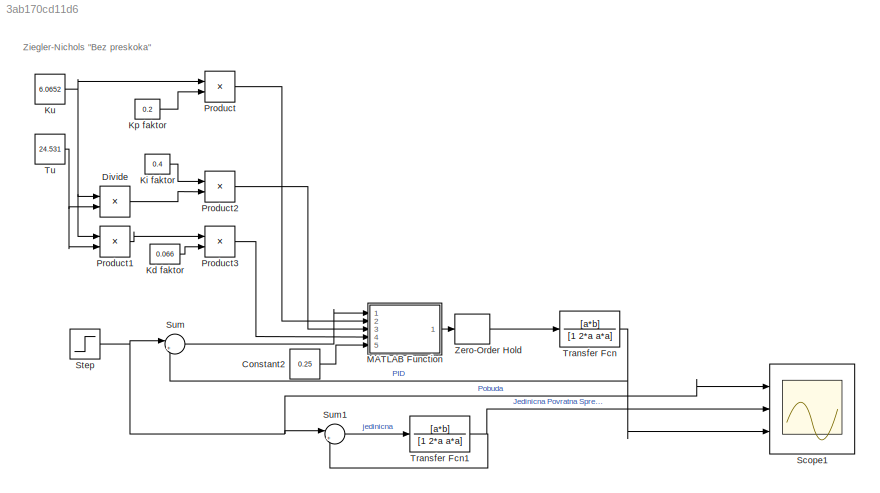
MODEL slx_3ab170cd11d6
KIND model
CONFIG AbsTol = auto
CONFIG EnableMultiTasking = off
CONFIG FixedStep = auto
CONFIG MaxStep = auto
CONFIG MinStep = auto
CONFIG RelTol = 1e-3
CONFIG SampleTimeConstraint = Unconstrained
CONFIG Solver = VariableStepAuto
CONFIG SolverName = VariableStepAuto
CONFIG StartTime = 0.0
CONFIG StopTime = 500
BLOCK [Constant] Constant2
  Value = 0.25
BLOCK [Product] Divide
  Inputs = */
  Ports = [2, 1]
BLOCK [Constant] Kd faktor
  Value = 0.066
BLOCK [Constant] Ki faktor
  Value = 0.4
BLOCK [Constant] Kp faktor
  Value = 0.2
BLOCK [Constant] Ku
  Value = 6.0652
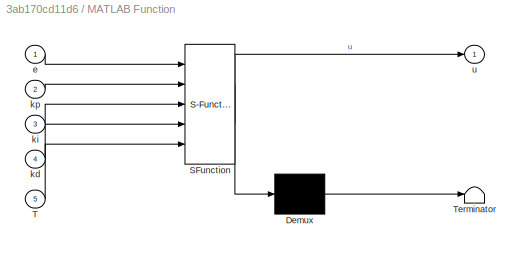
BLOCK [SubSystem] MATLAB Function
  ErrorFcn = Stateflow.Translate.translate
  PermitHierarchicalResolution = ExplicitOnly
  Ports = [5, 1]
  RequestExecContextInheritance = off
  SFBlockType = MATLAB Function
  TreatAsAtomicUnit = on
BLOCK [Demux] MATLAB Function/ Demux 
  Outputs = 1
  Ports = [1, 1]
BLOCK [S-Function] MATLAB Function/ SFunction 
  EnableBusSupport = on
  FunctionName = sf_sfun
  PortCounts = [5 2]
  Ports = [5, 2]
  SFcnIsStateOwnerBlock = off
  SFunctionDeploymentMode = off
  Tag = Stateflow S-Function DiskretniPID_za2018 2
BLOCK [Terminator] MATLAB Function/ Terminator 
BLOCK [Inport] MATLAB Function/T
  Port = 5
BLOCK [Inport] MATLAB Function/e
BLOCK [Inport] MATLAB Function/kd
  Port = 4
BLOCK [Inport] MATLAB Function/ki
  Port = 3
BLOCK [Inport] MATLAB Function/kp
  Port = 2
BLOCK [Outport] MATLAB Function/u
  VectorParamsAs1DForOutWhenUnconnected = off
BLOCK [Product] Product
  Ports = [2, 1]
BLOCK [Product] Product1
  Ports = [2, 1]
BLOCK [Product] Product2
  Ports = [2, 1]
BLOCK [Product] Product3
  Ports = [2, 1]
BLOCK [Scope] Scope1
  Floating = off
  NumInputPorts = 3
  Ports = [3]
  ScopeSpecificationString = Simulink.scopes.TimeScopeBlockCfg('CurrentConfiguration', extmgr.ConfigurationSet(extmgr.Configuration('Core','General UI',true),extmgr.Configuration('Core','Source UI',true),extmgr.Configuration('Sources','WiredSimulink',true,'DataLoggingVariableName','ScopeData1'),extmgr.Configuration('Visuals','Time Domain',true,'SerializedDisplays',{struct('MinYLimReal','-0.19638','MaxYLimReal','1.7674','YLabe...<+1598ch>
BLOCK [Step] Step
  SampleTime = 0
BLOCK [Sum] Sum
  Inputs = |+-
  Ports = [2, 1]
BLOCK [Sum] Sum1
  Inputs = |+-
  Ports = [2, 1]
BLOCK [TransferFcn] Transfer Fcn
  Denominator = [1 2*a a*a]
  Numerator = [a*b]
BLOCK [TransferFcn] Transfer Fcn1
  Denominator = [1 2*a a*a]
  Numerator = [a*b]
BLOCK [Constant] Tu
  Value = 24.531
BLOCK [ZeroOrderHold] Zero-Order Hold
  SampleTime = T
ANNOTATION (root): Ziegler-Nichols "Bez preskoka"
LINE Constant2:1 -> MATLAB Function:5
LINE Divide:1 -> Product2:2
LINE Kd faktor:1 -> Product3:2
LINE Ki faktor:1 -> Product2:1
LINE Kp faktor:1 -> Product:2
NET Ku:1 -> Divide:1, Product1:1, Product:1
LINE MATLAB Function:1 -> Zero-Order Hold:1
LINE Product1:1 -> Product3:1
LINE Product2:1 -> MATLAB Function:3
LINE Product3:1 -> MATLAB Function:4
LINE Product:1 -> MATLAB Function:2
NET Step:1 -> Scope1:1, Sum1:1, Sum:1
LINE Sum1:1 -> Transfer Fcn1:1
LINE Sum:1 -> MATLAB Function:1
NET Transfer Fcn1:1 -> Scope1:2, Sum1:2
NET Transfer Fcn:1 -> Scope1:3, Sum:2
NET Tu:1 -> Divide:2, Product1:2
LINE Zero-Order Hold:1 -> Transfer Fcn:1
note: NET lines group one-source signal fan-out (src -> all destinations, sorted); 1:1 wires keep LINE
CHART MATLAB Function states=1 transitions=1
  STATE_LABEL 'eML_blk_kernel()'
  STATE_LABEL 'SCRIPT:\nfunction u = fcn(e,kp,ki,kd,T)\npersistent u1 e1 e2;\n\n\n%inicijalizacija globalnih promenljivih\nif isempty(e1)\n    e1=0;\nend\n\nif isempty(e2)\n    e2=0;\nend\n\nif isempty(u1)\n    u1=0;\nend\n\n%upravljacki algoritam\nu = u1 + e*(kp*T + ki*T^2 + kd)/T + e1*(-kp*T -2*kd)/T + e2*kd/T;\n\n%azuriranje globalnih promenljivih\nu1=u;\ne2 = e1;\ne1 = e;\nend\n'
